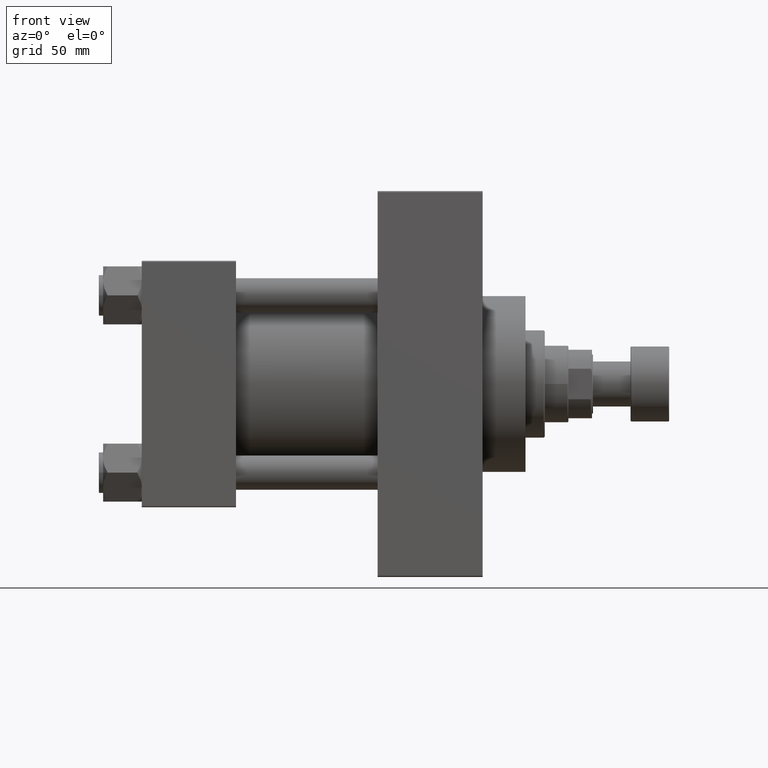
[diagram: clean part render]
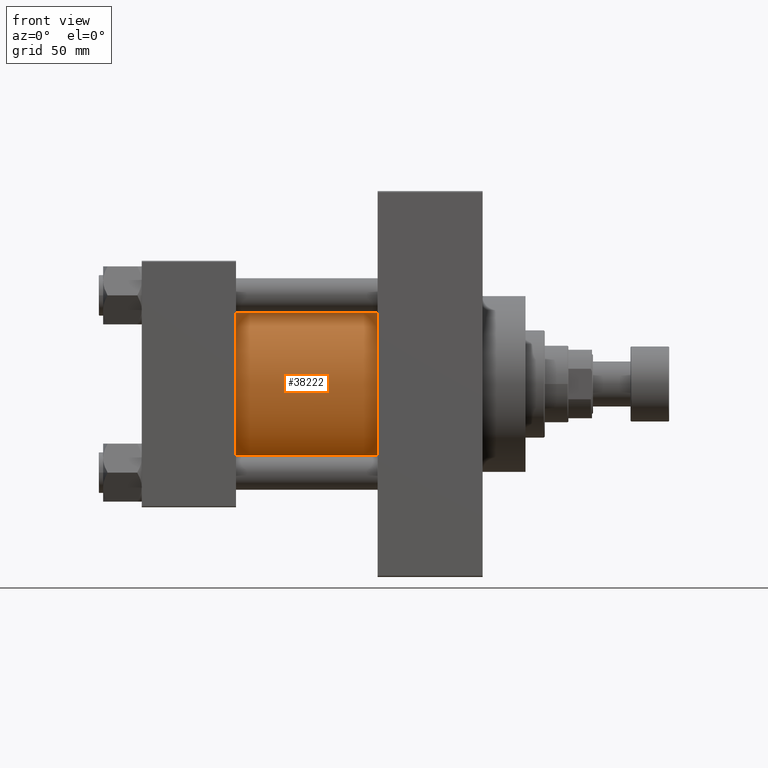
[diagram: same view with one face highlighted and labeled with its STEP entity id]
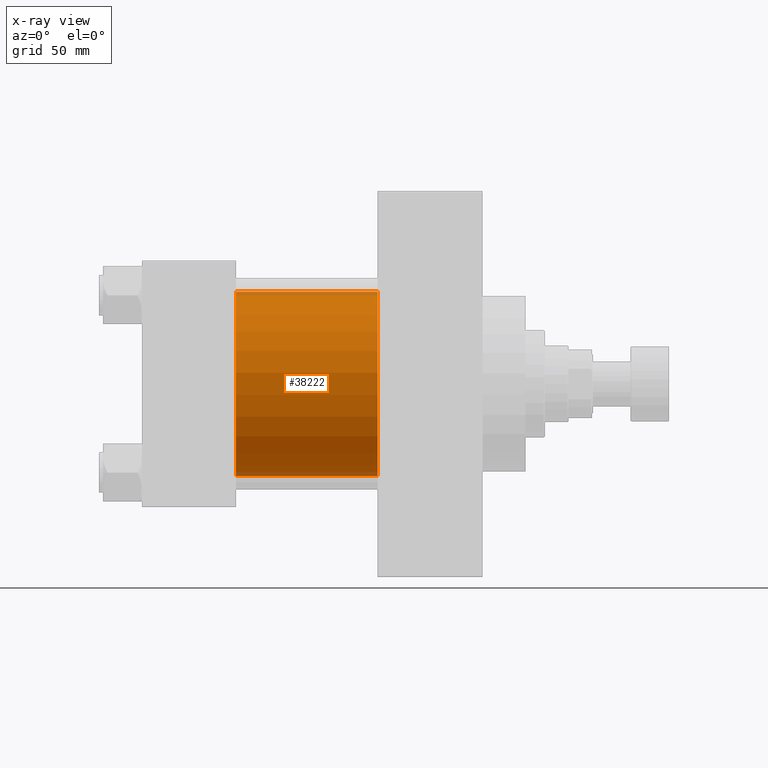
[diagram: x-ray of the same camera — body ghosted, the highlighted face saturated]
A machine part, front view. The second image highlights one B-rep face of the part: STEP entity #38222.
The next image is the same camera in x-ray: the body ghosted, the highlighted face saturated — about 4% of this face is hidden behind the body in this view.
In plain terms, the highlighted cylindrical surface (partial cylindrical patch) has radius 43 mm, axis along (-1, -0, -0).
Its self-contained STEP definition (entity closure, byte-faithful):
#1410 = CARTESIAN_POINT ( 'NONE',  ( 110.0000000000000000, -2.602085213965210642E-15, 0.000000000000000000 ) ) ;
#2775 = DIRECTION ( 'NONE',  ( -1.000000000000000000, -0.000000000000000000, -0.000000000000000000 ) ) ;
#5309 = DIRECTION ( 'NONE',  ( 0.000000000000000000, 0.000000000000000000, 1.000000000000000000 ) ) ;
#5442 = VERTEX_POINT ( 'NONE', #23212 ) ;
#6645 = AXIS2_PLACEMENT_3D ( 'NONE', #40962, #33170, #44609 ) ;
#7579 = EDGE_CURVE ( 'NONE', #5442, #24500, #29376, .T. ) ;
#9800 = CIRCLE ( 'NONE', #10610, 43.00000000000000000 ) ;
#9962 = VECTOR ( 'NONE', #47878, 1000.000000000000000 ) ;
#10610 = AXIS2_PLACEMENT_3D ( 'NONE', #23016, #20029, #46090 ) ;
#11577 = LINE ( 'NONE', #33742, #17912 ) ;
#13619 = CIRCLE ( 'NONE', #6645, 43.00000000000000000 ) ;
#14208 = EDGE_CURVE ( 'NONE', #43836, #29116, #11577, .T. ) ;
#15149 = CARTESIAN_POINT ( 'NONE',  ( 44.00000000000000000, 2.663896022368408223E-15, -43.00000000000000000 ) ) ;
#16442 = CARTESIAN_POINT ( 'NONE',  ( 110.0000000000000000, -2.602085213965210642E-15, 43.00000000000000000 ) ) ;
#17894 = ORIENTED_EDGE ( 'NONE', *, *, #7579, .F. ) ;
#17912 = VECTOR ( 'NONE', #26416, 1000.000000000000000 ) ;
#19887 = CYLINDRICAL_SURFACE ( 'NONE', #33974, 43.00000000000000000 ) ;
#20029 = DIRECTION ( 'NONE',  ( 1.000000000000000000, -0.000000000000000000, 0.000000000000000000 ) ) ;
#23016 = CARTESIAN_POINT ( 'NONE',  ( 44.00000000000000000, -2.602085213965210642E-15, 0.000000000000000000 ) ) ;
#23212 = CARTESIAN_POINT ( 'NONE',  ( 110.0000000000000000, 2.663896022368408223E-15, -43.00000000000000000 ) ) ;
#24500 = VERTEX_POINT ( 'NONE', #15149 ) ;
#26416 = DIRECTION ( 'NONE',  ( -1.000000000000000000, -0.000000000000000000, -0.000000000000000000 ) ) ;
#29116 = VERTEX_POINT ( 'NONE', #46106 ) ;
#29370 = ORIENTED_EDGE ( 'NONE', *, *, #34300, .F. ) ;
#29376 = LINE ( 'NONE', #30327, #9962 ) ;
#30327 = CARTESIAN_POINT ( 'NONE',  ( 110.0000000000000000, 2.663896022368408223E-15, -43.00000000000000000 ) ) ;
#33170 = DIRECTION ( 'NONE',  ( 1.000000000000000000, 0.000000000000000000, 0.000000000000000000 ) ) ;
#33742 = CARTESIAN_POINT ( 'NONE',  ( 110.0000000000000000, -2.602085213965210642E-15, 43.00000000000000000 ) ) ;
#33974 = AXIS2_PLACEMENT_3D ( 'NONE', #1410, #2775, #5309 ) ;
#34300 = EDGE_CURVE ( 'NONE', #43836, #5442, #13619, .T. ) ;
#34516 = FACE_OUTER_BOUND ( 'NONE', #40186, .T. ) ;
#36803 = EDGE_CURVE ( 'NONE', #29116, #24500, #9800, .T. ) ;
#38222 = ADVANCED_FACE ( 'NONE', ( #34516 ), #19887, .T. ) ;
#40186 = EDGE_LOOP ( 'NONE', ( #17894, #29370, #45751, #41538 ) ) ;
#40962 = CARTESIAN_POINT ( 'NONE',  ( 110.0000000000000000, -2.602085213965210642E-15, 0.000000000000000000 ) ) ;
#41538 = ORIENTED_EDGE ( 'NONE', *, *, #36803, .T. ) ;
#43836 = VERTEX_POINT ( 'NONE', #16442 ) ;
#44609 = DIRECTION ( 'NONE',  ( 0.000000000000000000, 0.000000000000000000, -1.000000000000000000 ) ) ;
#45751 = ORIENTED_EDGE ( 'NONE', *, *, #14208, .T. ) ;
#46090 = DIRECTION ( 'NONE',  ( 0.000000000000000000, 0.000000000000000000, 1.000000000000000000 ) ) ;
#46106 = CARTESIAN_POINT ( 'NONE',  ( 44.00000000000000000, -2.602085213965210642E-15, 43.00000000000000000 ) ) ;
#47878 = DIRECTION ( 'NONE',  ( -1.000000000000000000, -0.000000000000000000, -0.000000000000000000 ) ) ;